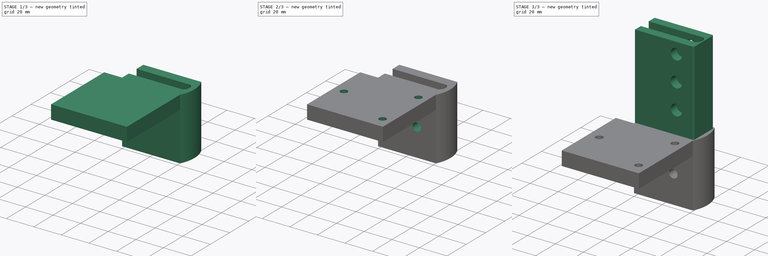
[diagram: build sequence overview — one tinted view per stage of 3, left to right]
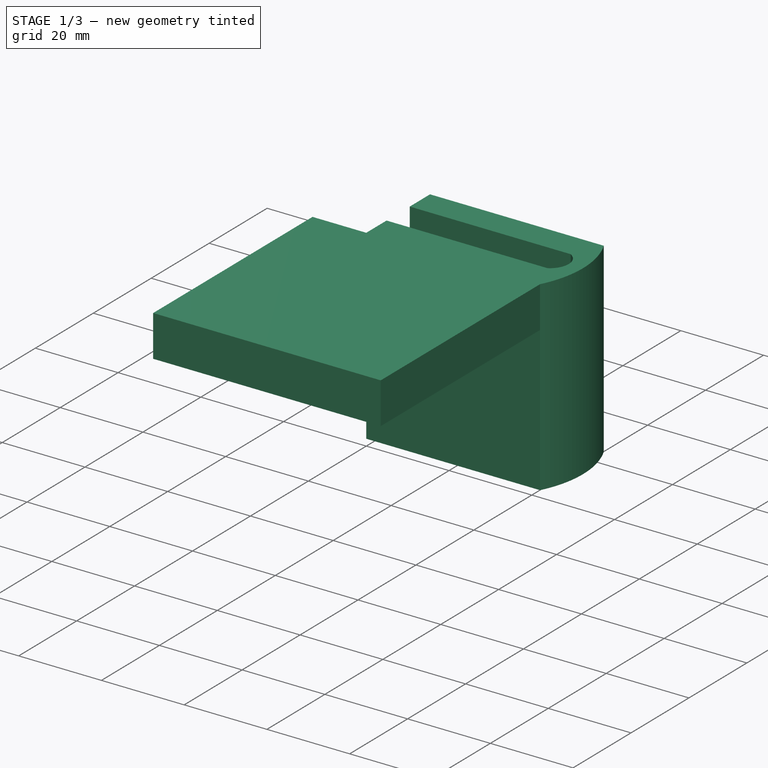
[diagram: stage 1 of 3 — iso view after this stage's code; geometry added in this stage tinted green]
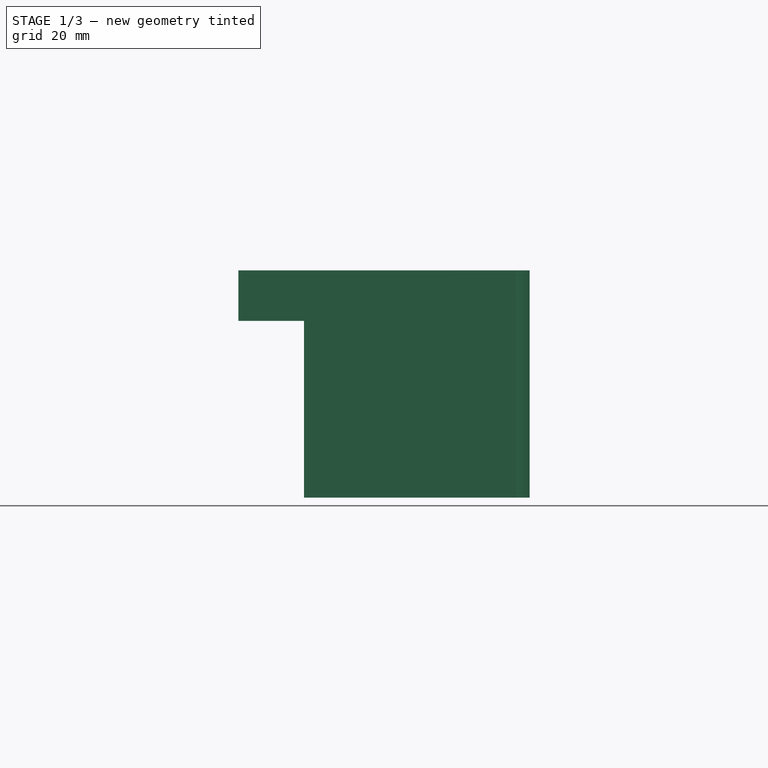
[diagram: stage 1 of 3 — front view after this stage's code; geometry added in this stage tinted green]
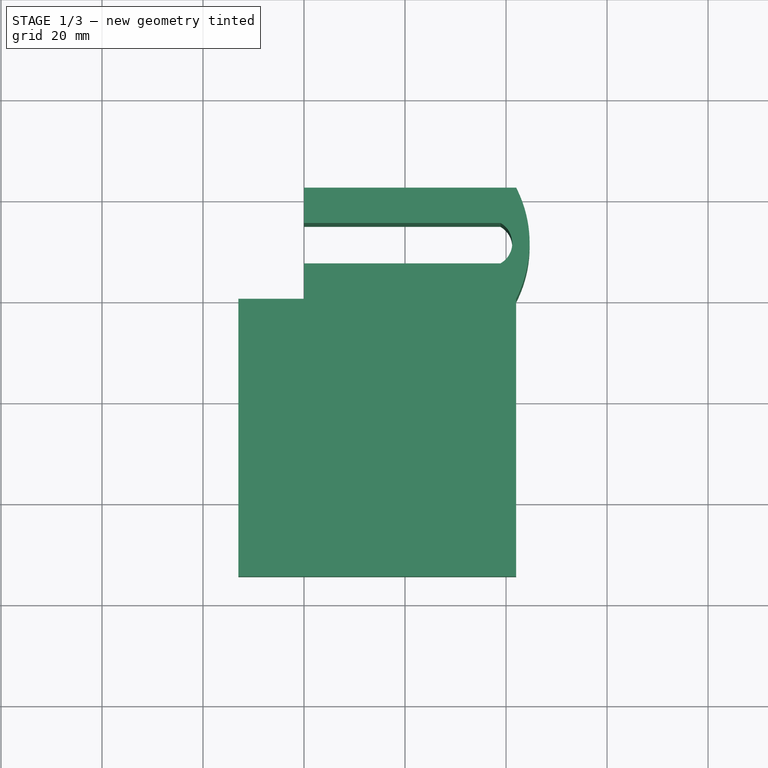
[diagram: stage 1 of 3 — top view after this stage's code; geometry added in this stage tinted green]
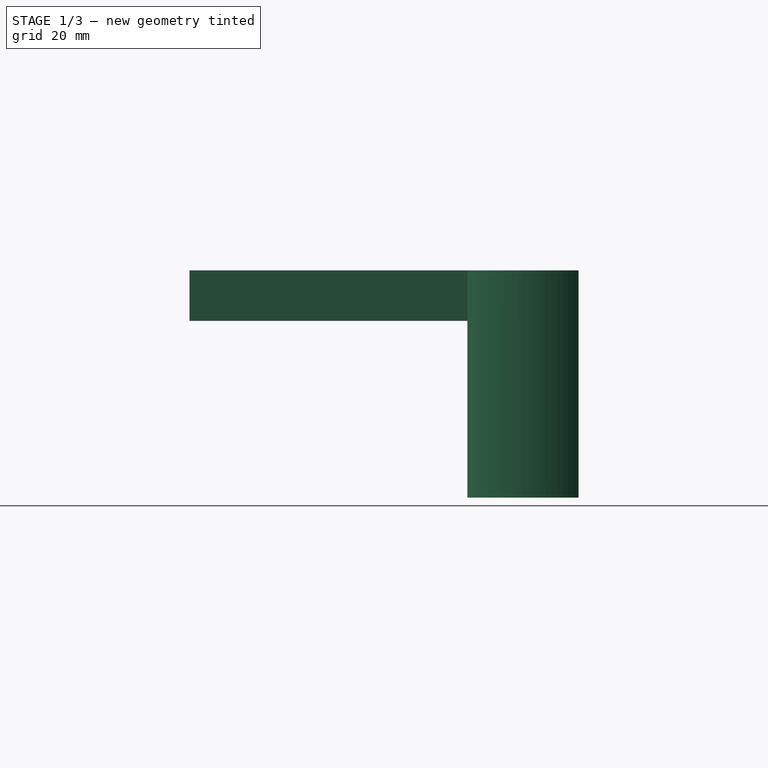
[diagram: stage 1 of 3 — right view after this stage's code; geometry added in this stage tinted green]
FCSTD DOCUMENT  (FreeCAD 0.20R29177 (Git))
Label: Sonda_speedlimit_support_ver11
License: All rights reserved
LicenseURL: http://en.wikipedia.org/wiki/All_rights_reserved
objects: Sketcher::SketchObject×6, PartDesign::Pad×3, PartDesign::Pocket×3, PartDesign::Body×1
note: 19 computed .brp shape members not serialized (recipe doc carries the construction recipe); baked Part::Feature solids carry a one-line shape summary decoded from their .brp

FEATURE [Sketcher::SketchObject] Sketch
  FullyConstrained = true
  MapMode = 5
  Support = -> [XY_Plane]
  sketch-geometry (8):
    g0: LineSegment StartX=0 StartY=22 StartZ=0 EndX=42 EndY=22 EndZ=0
    g1: LineSegment StartX=42 StartY=-5.3e-15 StartZ=0 EndX=0 EndY=0 EndZ=0
    g2: LineSegment StartX=0 StartY=22 StartZ=0 EndX=0 EndY=15 EndZ=0
    g3: LineSegment StartX=0 StartY=15 StartZ=0 EndX=38.9 EndY=15 EndZ=0
    g4: LineSegment StartX=38.9 StartY=7 StartZ=0 EndX=0 EndY=7 EndZ=0
    g5: LineSegment StartX=0 StartY=7 StartZ=0 EndX=0 EndY=0 EndZ=0
    g6: ArcOfCircle CenterX=20.6693 CenterY=11 CenterZ=0 NormalX=0 NormalY=0 NormalZ=1 AngleXU=0 Radius=24 StartAngle=5.80707 EndAngle=6.7593
    g7: ArcOfCircle CenterX=36.6284 CenterY=11 CenterZ=0 NormalX=0 NormalY=0 NormalZ=1 AngleXU=0 Radius=4.6 StartAngle=5.22886 EndAngle=7.33751
  constraints (25):
    c: PointOnObject(g0,g-2)
    c: Horizontal(g0)
    c: PointOnObject(g1,g-1)
    c: Coincident(g1,g-1)
    c: DistanceX(g0,g0) = 42
    c: DistanceX(g1,g1) = 42
    c: Coincident(g0,g2)
    c: PointOnObject(g2,g-2)
    c: Coincident(g2,g3)
    c: Horizontal(g3)
    c: PointOnObject(g4,g-2)
    c: Horizontal(g4)
    c: Coincident(g4,g5)
    c: Coincident(g5,g1)
    c: Coincident(g6,g0)
    c: Coincident(g6,g1)
    c: Coincident(g7,g3)
    c: Coincident(g7,g4)
    c: DistanceY(g2,g2) = 7
    c: DistanceY(g5,g5) = 7
    c: DistanceY(g1,g0) = 22
    c: Radius(g7) = 4.6
    c: DistanceX(g3,g3) = 38.9
    c: DistanceX(g4,g4) = 38.9
    c: Radius(g6) = 24
FEATURE [PartDesign::Pad] Pad
  Direction = (0,0,1)
  Length = 45
  Length2 = 10
  Profile = -> Sketch
  ReferenceAxis = -> Sketch [N_Axis]
  Type = 0
FEATURE [Sketcher::SketchObject] Sketch001
  FullyConstrained = true
  MapMode = 5
  Placement = pos=(0,1e-16,0) rot=(1,0,0;1.5708rad)
  Support = -> [Pad]
  sketch-geometry (4):
    g0: LineSegment StartX=42 StartY=35 StartZ=0 EndX=-13 EndY=35 EndZ=0
    g1: LineSegment StartX=-13 StartY=35 StartZ=0 EndX=-13 EndY=45 EndZ=0
    g2: LineSegment StartX=-13 StartY=45 StartZ=0 EndX=42 EndY=45 EndZ=0
    g3: LineSegment StartX=42 StartY=45 StartZ=0 EndX=42 EndY=35 EndZ=0
  constraints (12):
    c: Coincident(g0,g1)
    c: Coincident(g1,g2)
    c: Coincident(g2,g3)
    c: Coincident(g3,g0)
    c: Horizontal(g0)
    c: Horizontal(g2)
    c: Vertical(g1)
    c: Vertical(g3)
    c: DistanceX(g2,g2) = 55
    c: DistanceY(g1,g1) = 10
    c: DistanceX(g2) = 42
    c: DistanceY(g2) = 45
FEATURE [PartDesign::Pad] Pad001
  BaseFeature = -> Pad
  Direction = (-1e-16,-1,2e-16)
  Length = 55
  Length2 = 10
  Profile = -> Sketch001
  ReferenceAxis = -> Sketch001 [N_Axis]
  Type = 0
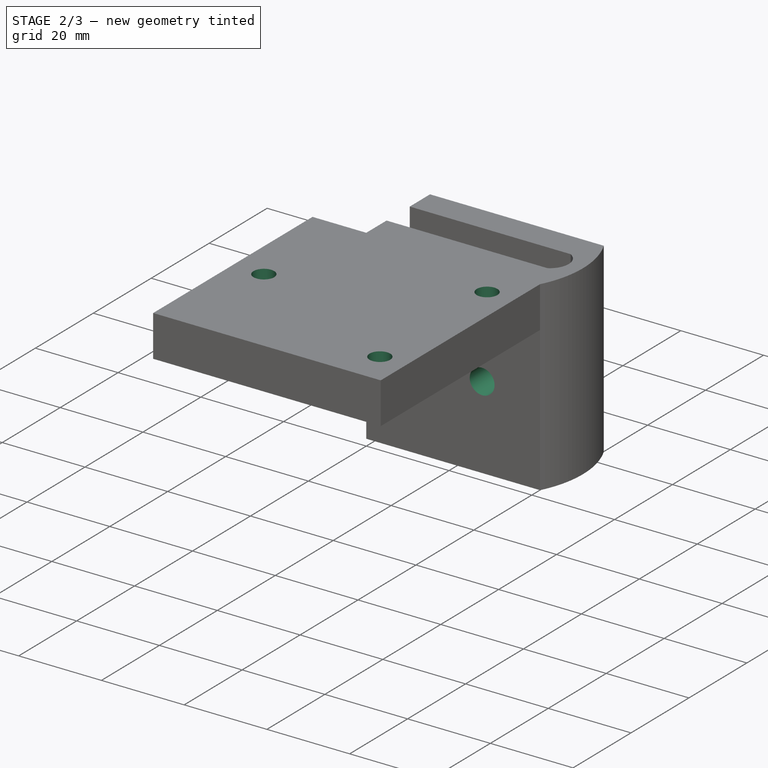
[diagram: stage 2 of 3 — iso view after this stage's code; geometry added in this stage tinted green]
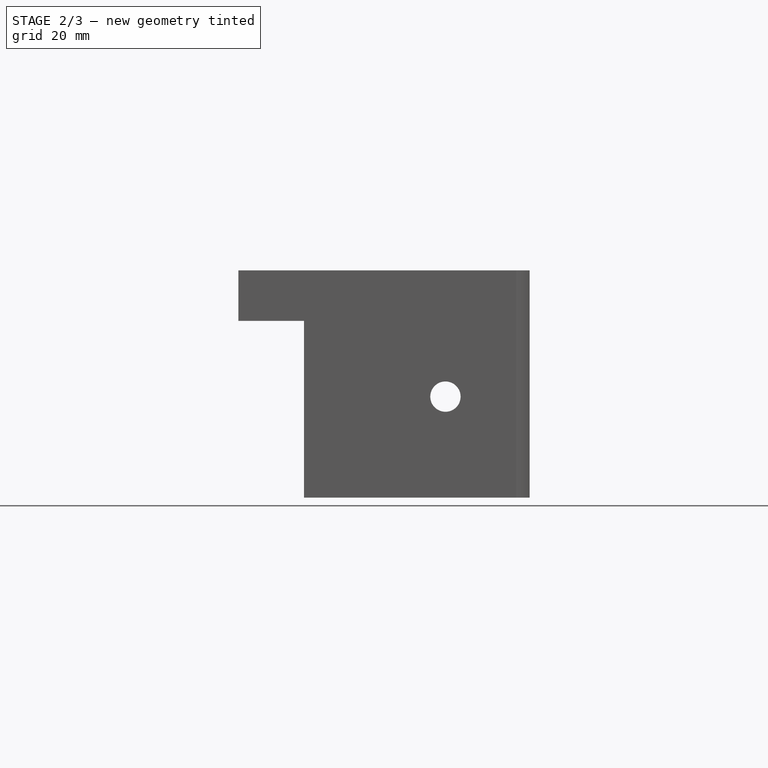
[diagram: stage 2 of 3 — front view after this stage's code; geometry added in this stage tinted green]
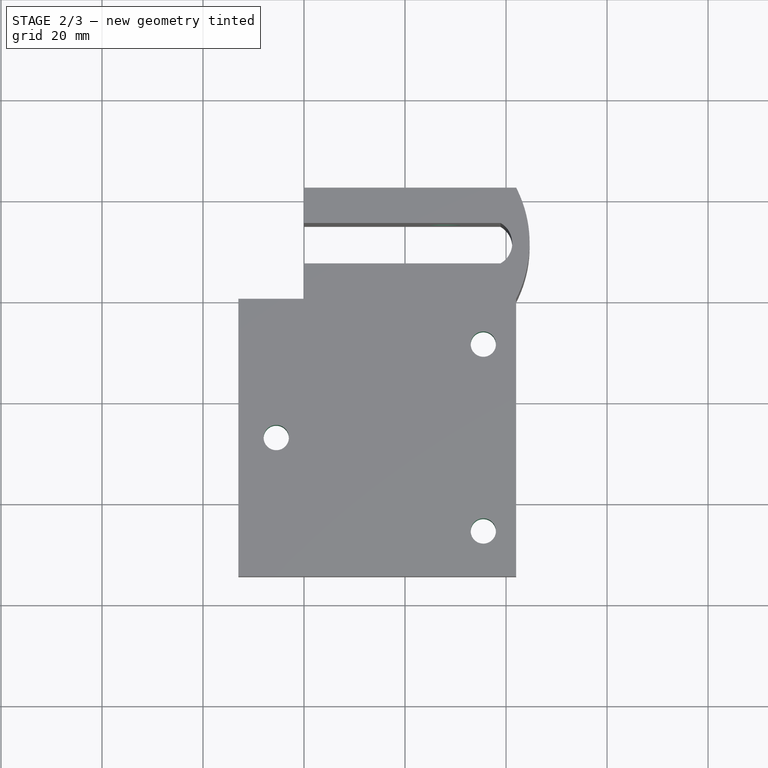
[diagram: stage 2 of 3 — top view after this stage's code; geometry added in this stage tinted green]
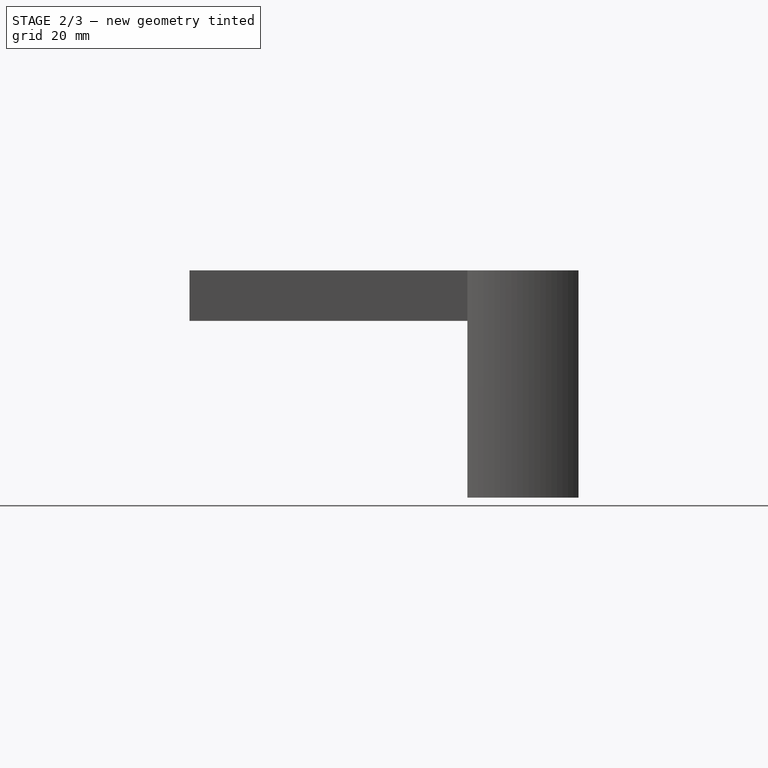
[diagram: stage 2 of 3 — right view after this stage's code; geometry added in this stage tinted green]
FEATURE [Sketcher::SketchObject] Sketch002
  FullyConstrained = true
  MapMode = 5
  Placement = pos=(0,1e-16,0) rot=(1,0,0;1.5708rad)
  Support = -> [Pad001]
  sketch-geometry (1):
    g0: Circle CenterX=28 CenterY=20 CenterZ=0 NormalX=0 NormalY=0 NormalZ=1 AngleXU=0 Radius=3
  constraints (3):
    c: Diameter(g0) = 6
    c: DistanceX(g0) = 28
    c: DistanceY(g0) = 20
FEATURE [PartDesign::Pocket] Pocket
  BaseFeature = -> Pad001
  Direction = (1e-16,1,-2e-16)
  Length = 22
  Length2 = 5
  Profile = -> Sketch002
  ReferenceAxis = -> Sketch002 [N_Axis]
  Type = 0
FEATURE [Sketcher::SketchObject] Sketch003
  FullyConstrained = true
  MapMode = 5
  Placement = pos=(0,9.9e-15,45) rot=(0,0,1;0rad)
  Support = -> [Pocket]
  sketch-geometry (3):
    g0: Circle CenterX=35.5 CenterY=-9 CenterZ=0 NormalX=0 NormalY=0 NormalZ=1 AngleXU=0 Radius=2.5
    g1: Circle CenterX=35.5 CenterY=-46 CenterZ=0 NormalX=0 NormalY=0 NormalZ=1 AngleXU=0 Radius=2.5
    g2: Circle CenterX=-5.5 CenterY=-27.5 CenterZ=0 NormalX=0 NormalY=0 NormalZ=1 AngleXU=0 Radius=2.5
  constraints (9):
    c: Diameter(g0) = 5
    c: Diameter(g1) = 5
    c: Diameter(g2) = 5
    c: DistanceX(g2) = -5.5
    c: DistanceY(g2) = -27.5
    c: DistanceX(g0) = 35.5
    c: DistanceY(g0) = -9
    c: DistanceX(g1) = 35.5
    c: DistanceY(g1) = -46
FEATURE [PartDesign::Pocket] Pocket001
  BaseFeature = -> Pocket
  Direction = (0,-2e-16,-1)
  Length = 10
  Length2 = 5
  Profile = -> Sketch003
  ReferenceAxis = -> Sketch003 [N_Axis]
  Type = 0
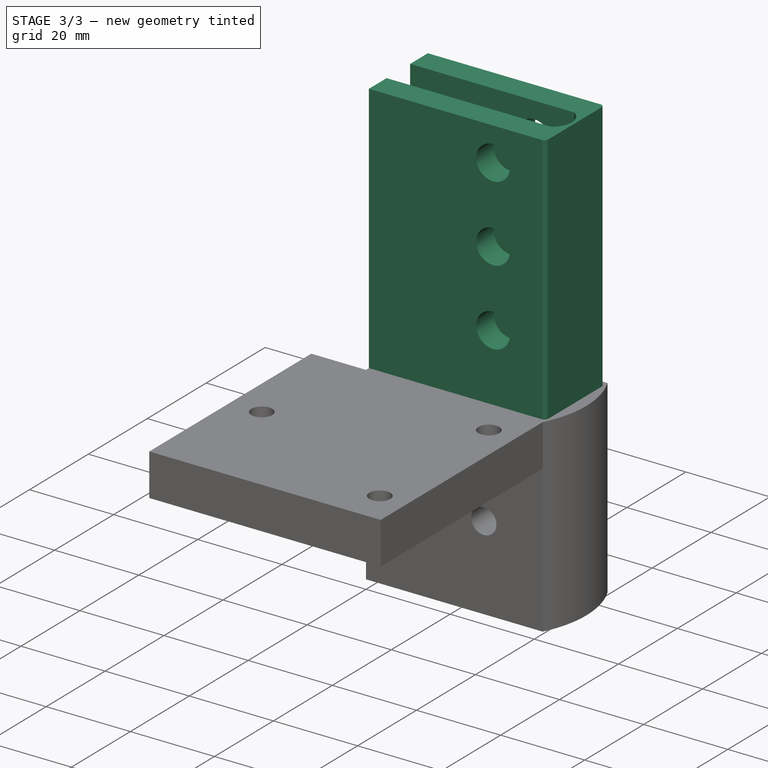
[diagram: stage 3 of 3 — iso view after this stage's code; geometry added in this stage tinted green]
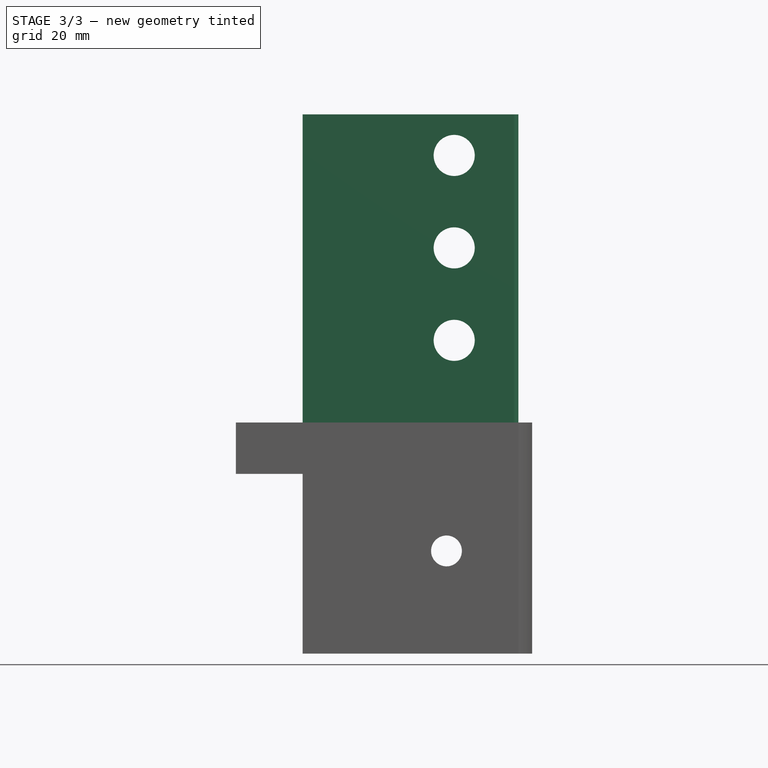
[diagram: stage 3 of 3 — front view after this stage's code; geometry added in this stage tinted green]
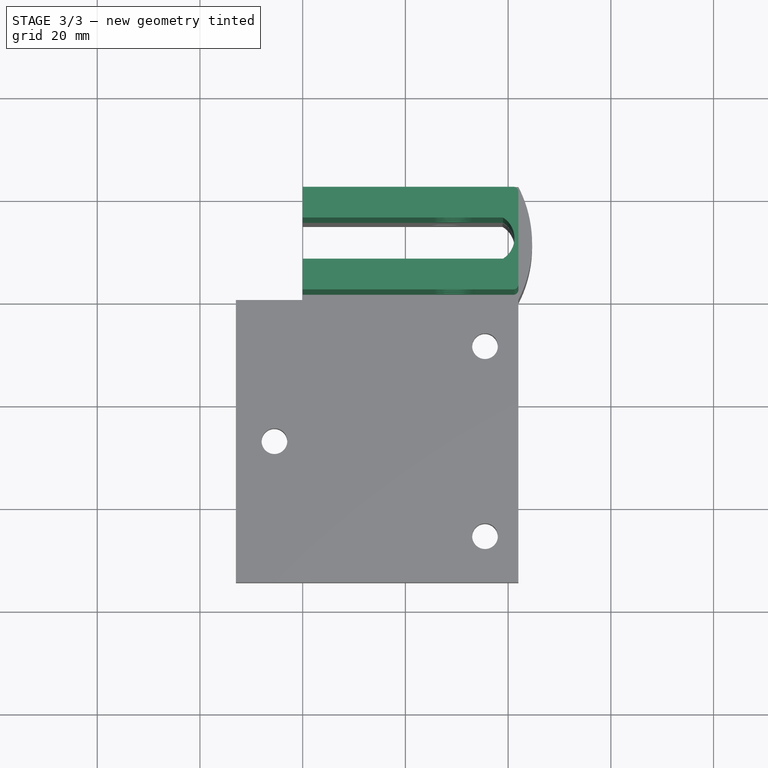
[diagram: stage 3 of 3 — top view after this stage's code; geometry added in this stage tinted green]
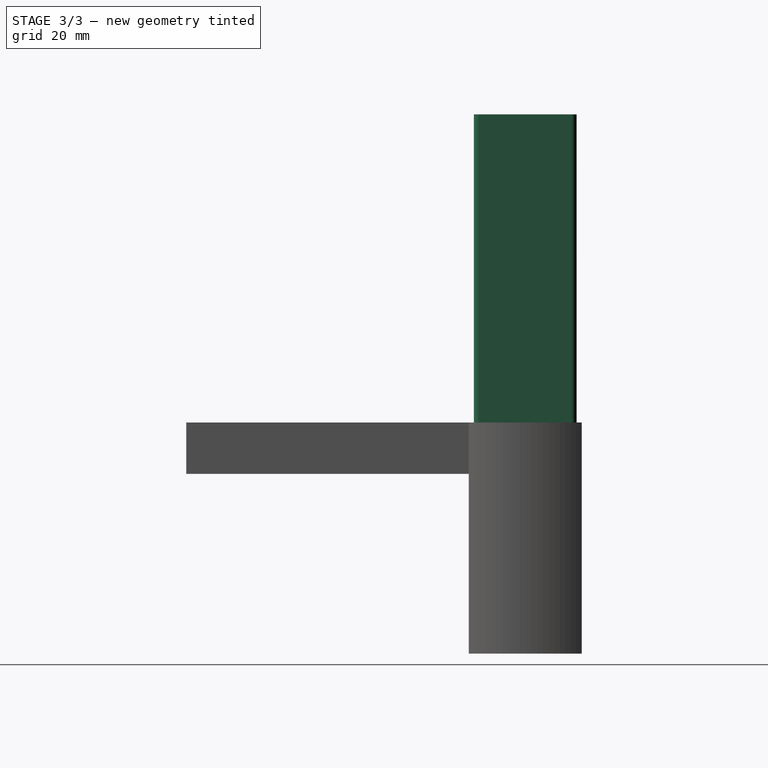
[diagram: stage 3 of 3 — right view after this stage's code; geometry added in this stage tinted green]
FEATURE [Sketcher::SketchObject] Sketch004
  FullyConstrained = true
  MapMode = 5
  Placement = pos=(0,0,45) rot=(0,0,1;0rad)
  Support = -> [Pocket001]
  sketch-geometry (10):
    g0: LineSegment StartX=0 StartY=21 StartZ=0 EndX=41 EndY=21 EndZ=0
    g1: LineSegment StartX=0 StartY=1 StartZ=0 EndX=0 EndY=7 EndZ=0
    g2: LineSegment StartX=0 StartY=7 StartZ=0 EndX=39 EndY=7 EndZ=0
    g3: LineSegment StartX=39 StartY=15 StartZ=0 EndX=0 EndY=15 EndZ=0
    g4: LineSegment StartX=0 StartY=15 StartZ=0 EndX=0 EndY=21 EndZ=0
    g5: ArcOfCircle CenterX=36.5322 CenterY=11 CenterZ=0 NormalX=0 NormalY=0 NormalZ=1 AngleXU=0 Radius=4.7 StartAngle=5.26518 EndAngle=7.30119
    g6: LineSegment StartX=42 StartY=20 StartZ=0 EndX=42 EndY=2 EndZ=0
    g7: LineSegment StartX=41 StartY=1 StartZ=0 EndX=0 EndY=1 EndZ=0
    g8: ArcOfCircle CenterX=41 CenterY=2 CenterZ=0 NormalX=0 NormalY=0 NormalZ=1 AngleXU=0 Radius=1 StartAngle=4.71239 EndAngle=6.28319
    g9: ArcOfCircle CenterX=41 CenterY=20 CenterZ=0 NormalX=0 NormalY=0 NormalZ=1 AngleXU=0 Radius=1 StartAngle=-9e-16 EndAngle=1.5708
  constraints (29):
    c: PointOnObject(g0,g-2)
    c: Horizontal(g0)
    c: PointOnObject(g1,g-2)
    c: Coincident(g1,g2)
    c: Horizontal(g2)
    c: PointOnObject(g3,g-2)
    c: Horizontal(g3)
    c: Coincident(g3,g4)
    c: Coincident(g4,g0)
    c: Coincident(g5,g3)
    c: Coincident(g5,g2)
    c: Radius(g5) = 4.7
    c: DistanceX(g2,g2) = 39
    c: DistanceX(g3,g3) = 39
    c: DistanceY(g4,g4) = 6
    c: Vertical(g6)
    c: Coincident(g7,g1)
    c: Horizontal(g7)
    c: DistanceY(g1,g1) = 6
    c: DistanceX(g1) = 0
    c: DistanceY(g1) = 1
    c: Tangent(g7,g8) = 1.5708
    c: Tangent(g6,g8) = 1.5708
    c: Tangent(g0,g9) = 1.5708
    c: Tangent(g6,g9) = 1.5708
    c: DistanceY(g7,g0) = 20
    c: Radius(g9) = 1
    c: Radius(g8) = 1
    c: DistanceX(g0,g6) = 42
FEATURE [PartDesign::Pad] Pad002
  BaseFeature = -> Pocket001
  Direction = (0,0,1)
  Length = 60
  Length2 = 10
  Profile = -> Sketch004
  ReferenceAxis = -> Sketch004 [N_Axis]
  Type = 0
FEATURE [Sketcher::SketchObject] Sketch005
  FullyConstrained = true
  MapMode = 5
  Placement = pos=(0,1,0) rot=(1,0,0;1.5708rad)
  sketch-geometry (3):
    g0: Circle CenterX=29.5 CenterY=61 CenterZ=0 NormalX=0 NormalY=0 NormalZ=1 AngleXU=0 Radius=4
    g1: Circle CenterX=29.5 CenterY=79 CenterZ=0 NormalX=0 NormalY=0 NormalZ=1 AngleXU=0 Radius=4
    g2: Circle CenterX=29.5 CenterY=97 CenterZ=0 NormalX=0 NormalY=0 NormalZ=1 AngleXU=0 Radius=4
  constraints (9):
    c: Diameter(g0) = 8
    c: Diameter(g1) = 8
    c: Diameter(g2) = 8
    c: DistanceX(g0) = 29.5
    c: DistanceY(g0) = 61
    c: DistanceX(g1) = 29.5
    c: DistanceY(g1) = 79
    c: DistanceX(g2) = 29.5
    c: DistanceY(g2) = 97
FEATURE [PartDesign::Pocket] Pocket002
  BaseFeature = -> Pad002
  Direction = (0,1,-2e-16)
  Length = 20
  Length2 = 5
  Profile = -> Sketch005
  ReferenceAxis = -> Sketch005 [N_Axis]
  Type = 0
FEATURE [PartDesign::Body] Body
  Group = -> [Sketch,Pad,Sketch001,Pad001,Sketch002,Pocket,Sketch003,Pocket001,Sketch004,Pad002,Sketch005,Pocket002]
  Origin = -> Origin
  Tip = -> Pocket002
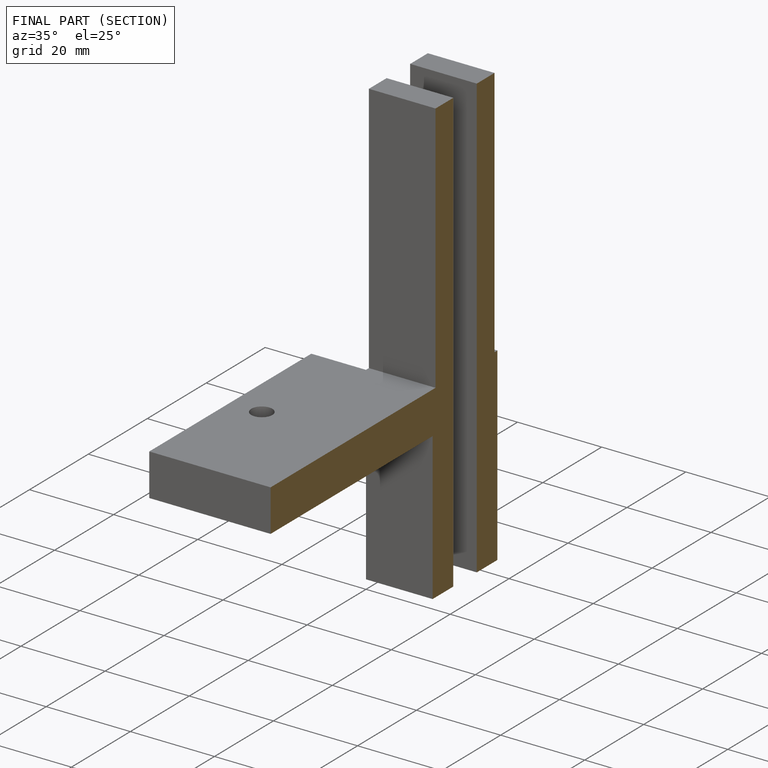
[diagram: finished part — half-section view (interior)]
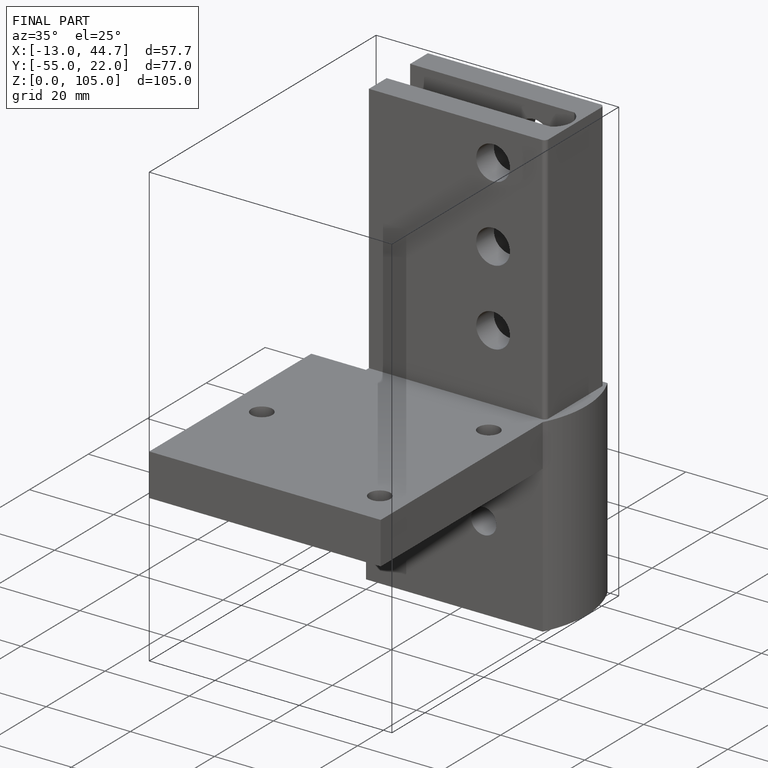
[diagram: finished part — iso view with bounding-box wireframe]
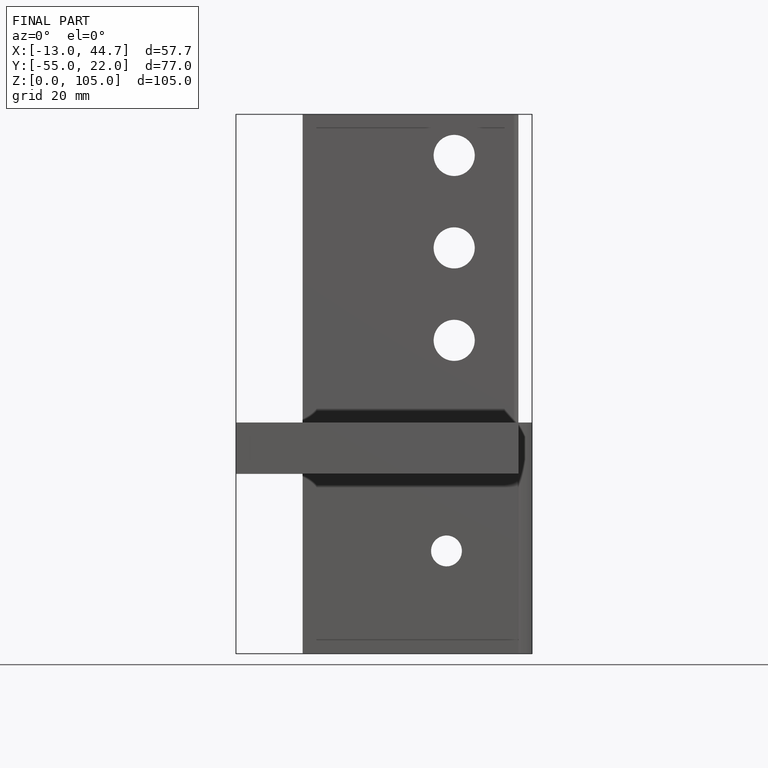
[diagram: finished part — front view with bounding-box wireframe]
